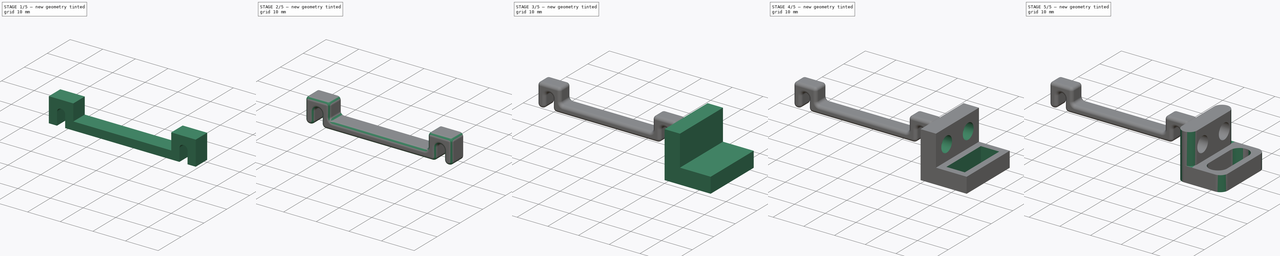
[diagram: build sequence overview — one tinted view per stage of 5, left to right]
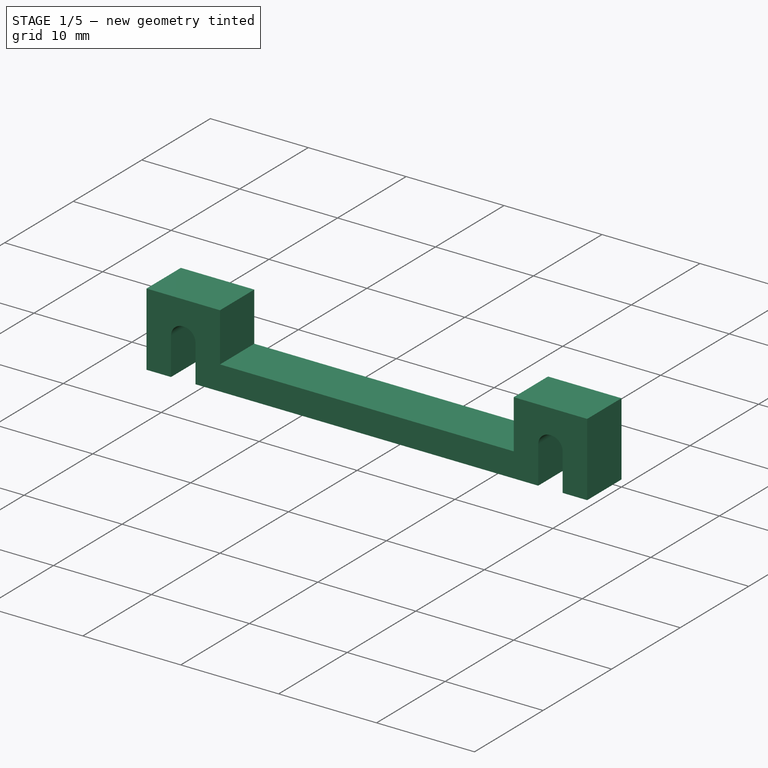
[diagram: stage 1 of 5 — iso view after this stage's code; geometry added in this stage tinted green]
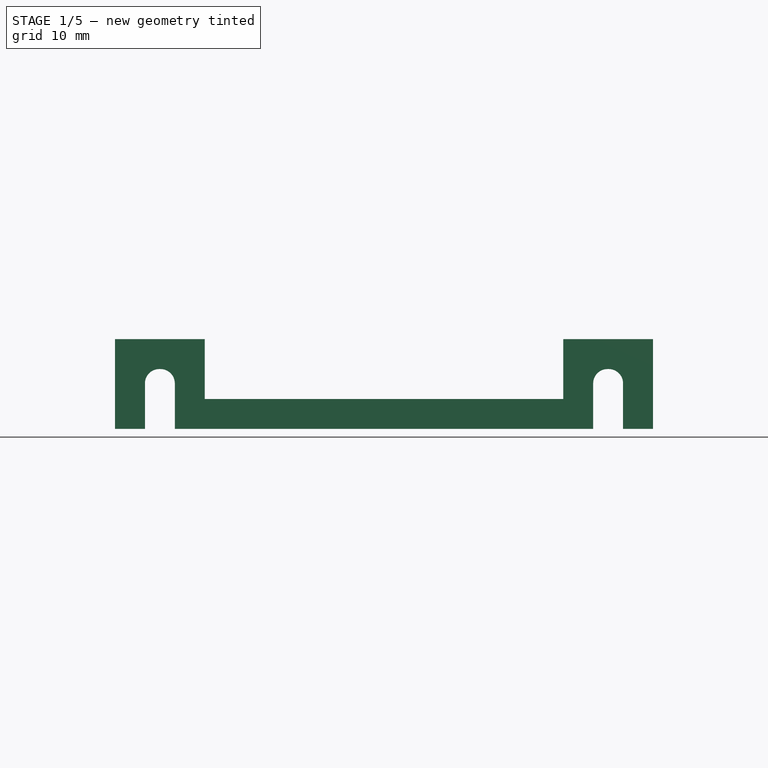
[diagram: stage 1 of 5 — front view after this stage's code; geometry added in this stage tinted green]
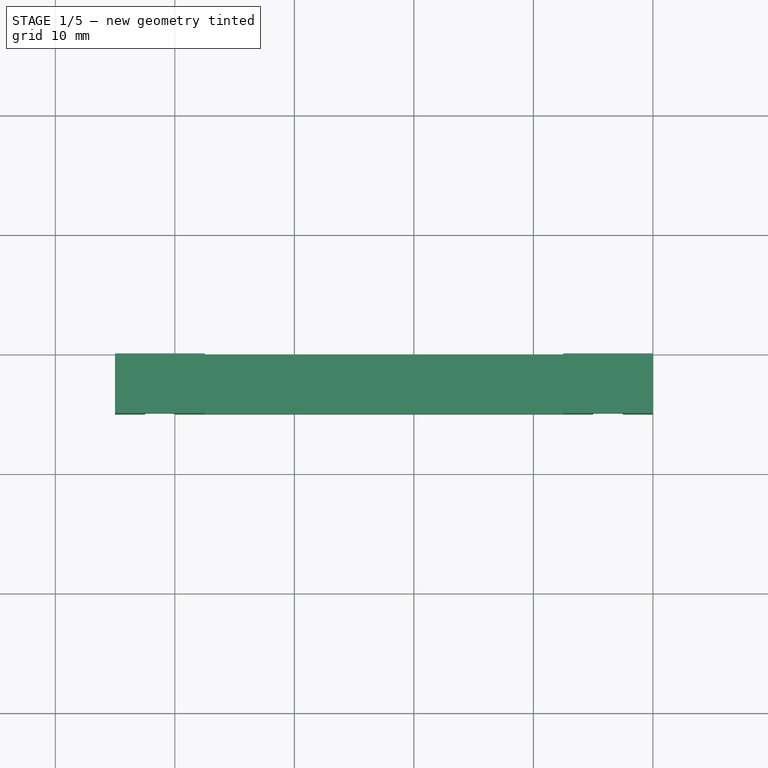
[diagram: stage 1 of 5 — top view after this stage's code; geometry added in this stage tinted green]
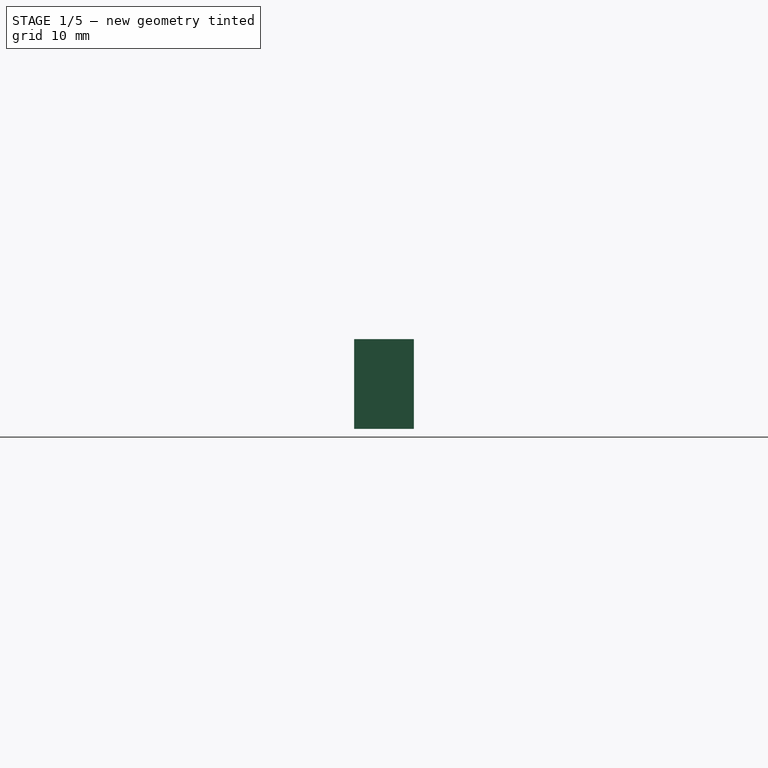
[diagram: stage 1 of 5 — right view after this stage's code; geometry added in this stage tinted green]
FCSTD DOCUMENT  (FreeCAD 1.0R39109 (Git))
Label: cabin_hook
License: All rights reserved
LicenseURL: https://en.wikipedia.org/wiki/All_rights_reserved
objects: PartDesign::Fillet×8, Sketcher::SketchObject×6, PartDesign::Pad×3, PartDesign::Pocket×3, PartDesign::Body×2, PartDesign::Chamfer×1
note: 59 computed .brp shape members not serialized (recipe doc carries the construction recipe); baked Part::Feature solids carry a one-line shape summary decoded from their .brp

FEATURE [PartDesign::Body] Body
  AllowCompound = false
  Group = -> [Sketch,Pad,Sketch001,Pad001,Sketch002,Pocket,Sketch003,Pocket001,Sketch005,Pocket002,Fillet,Fillet001,Chamfer]
  Origin = -> Origin
  Tip = -> Chamfer
FEATURE [Sketcher::SketchObject] Sketch006
  ArcFitTolerance = 1e-06
  AttachmentSupport = -> [XZ_Plane001]
  FullyConstrained = true
  MakeInternals = false
  MapMode = 5
  Placement = pos=(0,0,0) rot=(1,0,0;1.5708rad)
  sketch-geometry (18):
    g0: LineSegment StartX=0 StartY=0 StartZ=0 EndX=0 EndY=7.5 EndZ=0
    g1: LineSegment StartX=0 StartY=7.5 StartZ=0 EndX=-7.5 EndY=7.5 EndZ=0
    g2: LineSegment StartX=-7.5 StartY=7.5 StartZ=0 EndX=-7.5 EndY=2.5 EndZ=0
    g3: LineSegment StartX=-7.5 StartY=2.5 StartZ=0 EndX=-37.5 EndY=2.5 EndZ=0
    g4: LineSegment StartX=-37.5 StartY=2.5 StartZ=0 EndX=-37.5 EndY=7.5 EndZ=0
    g5: LineSegment StartX=-37.5 StartY=7.5 StartZ=0 EndX=-45 EndY=7.5 EndZ=0
    g6: LineSegment StartX=-45 StartY=7.5 StartZ=0 EndX=-45 EndY=0 EndZ=0
    g7: LineSegment StartX=-45 StartY=0 StartZ=0 EndX=-42.5 EndY=0 EndZ=0
    g8: LineSegment StartX=-42.5 StartY=0 StartZ=0 EndX=-42.5 EndY=5 EndZ=0
    g9: LineSegment StartX=-42.5 StartY=5 StartZ=0 EndX=-40 EndY=5 EndZ=0
    g10: LineSegment StartX=-40 StartY=5 StartZ=0 EndX=-40 EndY=0 EndZ=0
    g11: LineSegment StartX=-40 StartY=0 StartZ=0 EndX=-23.02 EndY=0 EndZ=0
    g12: LineSegment StartX=-23.02 StartY=0 StartZ=0 EndX=-11.49 EndY=0 EndZ=0
    g13: LineSegment StartX=-11.49 StartY=0 StartZ=0 EndX=-5 EndY=0 EndZ=0
    g14: LineSegment StartX=-5 StartY=0 StartZ=0 EndX=-5 EndY=5 EndZ=0
    g15: LineSegment StartX=-5 StartY=5 StartZ=0 EndX=-2.5 EndY=5 EndZ=0
    g16: LineSegment StartX=-2.5 StartY=5 StartZ=0 EndX=-2.5 EndY=0 EndZ=0
    g17: LineSegment StartX=-2.5 StartY=0 StartZ=0 EndX=0 EndY=0 EndZ=0
  constraints (53):
    c: Vertical(g0)
    c: Coincident(g0,g1)
    c: Horizontal(g1)
    c: Coincident(g1,g2)
    c: Coincident(g2,g3)
    c: Horizontal(g3)
    c: Coincident(g3,g4)
    c: Coincident(g4,g5)
    c: Horizontal(g5)
    c: Coincident(g5,g6)
    c: PointOnObject(g6,g-1)
    c: Vertical(g6)
    c: Coincident(g6,g7)
    c: PointOnObject(g7,g-1)
    c: Coincident(g7,g8)
    c: Vertical(g8)
    c: Coincident(g8,g9)
    c: Coincident(g9,g10)
    c: PointOnObject(g10,g-1)
    c: Vertical(g10)
    c: Coincident(g10,g11)
    c: PointOnObject(g11,g-1)
    c: Coincident(g11,g12)
    c: PointOnObject(g12,g-1)
    c: Coincident(g12,g13)
    c: PointOnObject(g13,g-1)
    c: Coincident(g13,g14)
    c: Coincident(g14,g15)
    c: Horizontal(g15)
    c: Coincident(g15,g16)
    c: PointOnObject(g16,g-1)
    c: Vertical(g16)
    c: Coincident(g16,g17)
    c: Coincident(g17,g0)
    c: Distance(g8,g6) = 2.5
    c: Distance(g3,g10) = 2.5
    c: Distance(g12,g3) = 2.5
    c: Distance(g8,g10) = 2.5
    c: Perpendicular(g11,g4)
    c: Distance(g0,g16) = 2.5
    c: Distance(g14,g2) = 2.5
    c: Perpendicular(g13,g2)
    c: DistanceX(g14,g15) = 2.5
    c: Parallel(g9,g5)
    c: Parallel(g14,g16)
    c: Distance(g2,g4) = 30
    c: Coincident(g0,g-1)
    c: DistanceX(g11,g12) = 11.53
    c: DistanceX(g12,g13) = 6.49
    c: Distance(g-1,g9) = 5
    c: Distance(g5,g9) = 2.5
    c: Distance(g15,g-1) = 5
    c: Distance(g15,g1) = 2.5
FEATURE [PartDesign::Pad] Pad002
  Direction = (0,-1,2e-16)
  Length = 5
  Length2 = 10
  Placement = pos=(0,0,0) rot=(1,0,0;1.5708rad)
  Profile = -> Sketch006
  ReferenceAxis = -> Sketch006 [N_Axis]
  Refine = true
  Suppressed = false
  Type = 0
FEATURE [PartDesign::Fillet] Fillet002
  Base = -> Pad002 [Edge41,Edge38]
  BaseFeature = -> Pad002
  Placement = pos=(0,0,0) rot=(1,0,0;1.5708rad)
  Radius = 1.2
  Refine = true
  SupportTransform = false
  Suppressed = false
  UseAllEdges = false
FEATURE [PartDesign::Fillet] Fillet003
  Base = -> Fillet002 [Edge49,Edge51]
  BaseFeature = -> Fillet002
  Placement = pos=(0,0,0) rot=(1,0,0;1.5708rad)
  Radius = 1.2
  Refine = true
  SupportTransform = false
  Suppressed = false
  UseAllEdges = false
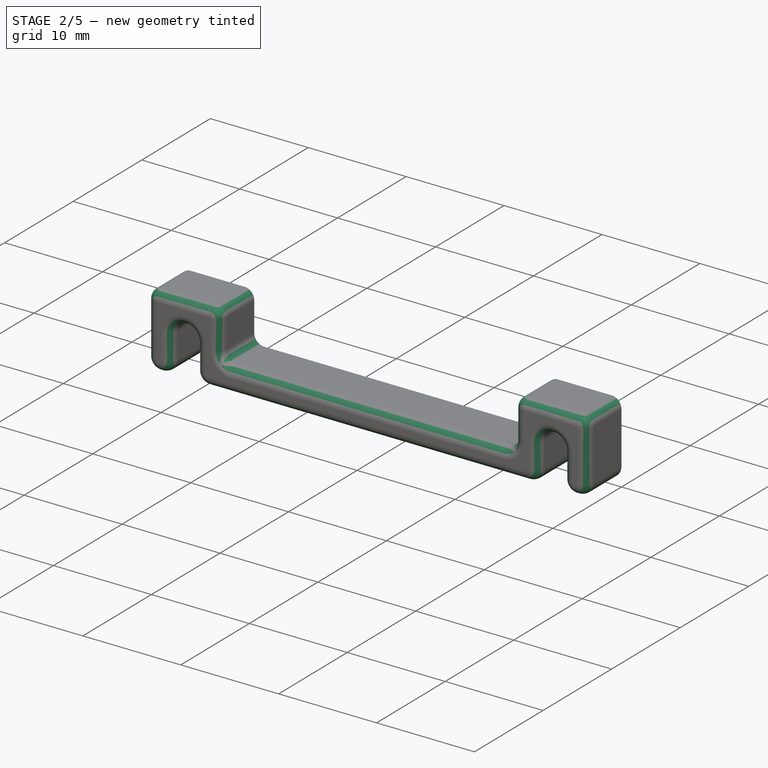
[diagram: stage 2 of 5 — iso view after this stage's code; geometry added in this stage tinted green]
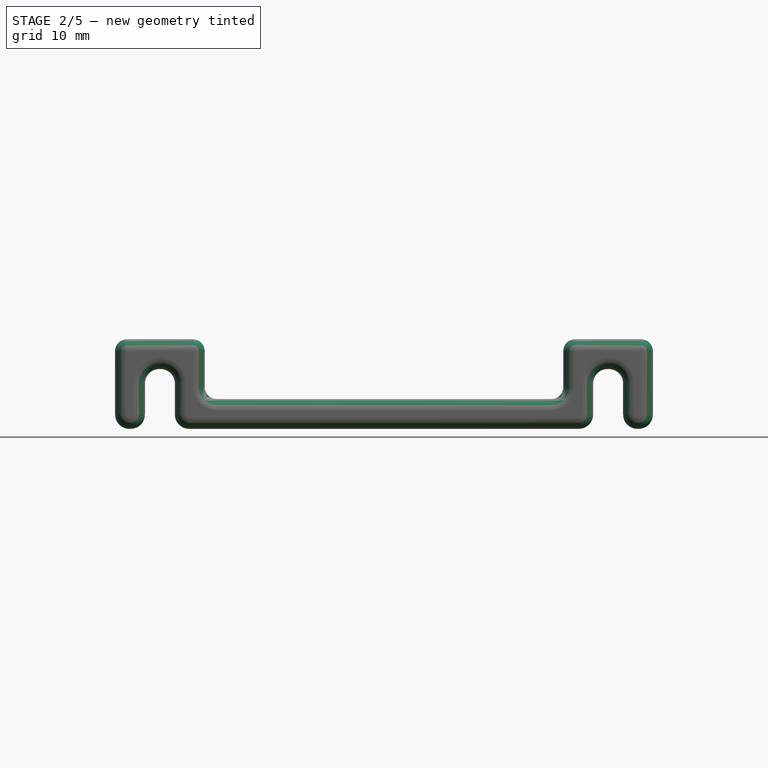
[diagram: stage 2 of 5 — front view after this stage's code; geometry added in this stage tinted green]
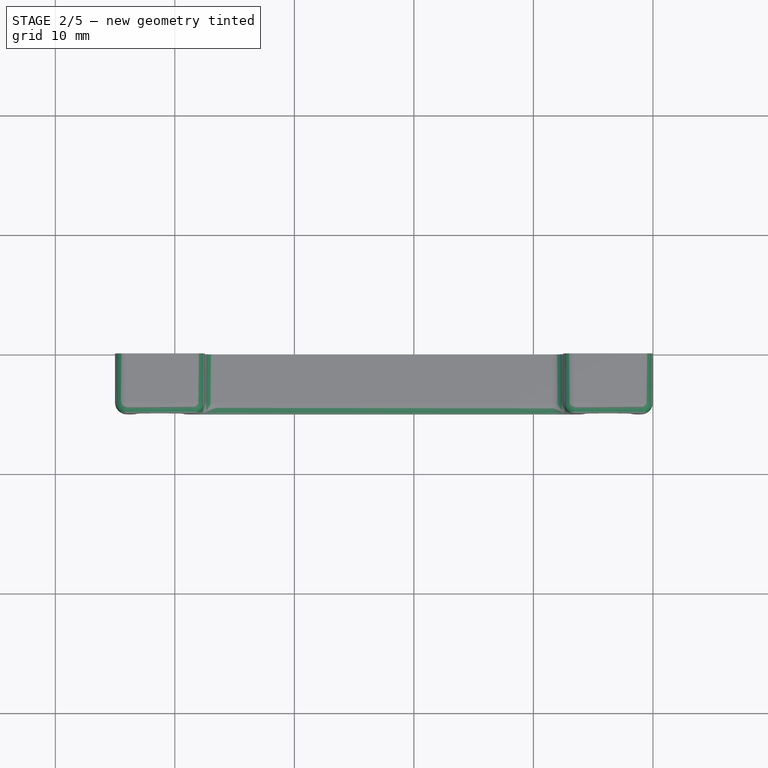
[diagram: stage 2 of 5 — top view after this stage's code; geometry added in this stage tinted green]
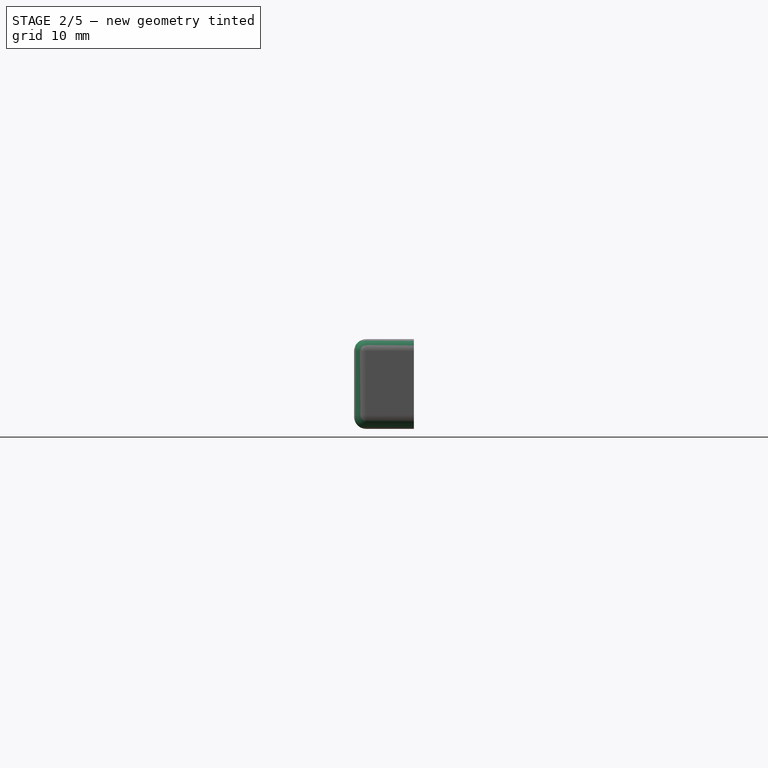
[diagram: stage 2 of 5 — right view after this stage's code; geometry added in this stage tinted green]
FEATURE [PartDesign::Fillet] Fillet004
  Base = -> Fillet003 [Edge50,Edge46,Edge26,Edge22,Edge36,Edge40]
  BaseFeature = -> Fillet003
  Placement = pos=(0,0,0) rot=(1,0,0;1.5708rad)
  Radius = 1.2
  Refine = true
  SupportTransform = false
  Suppressed = false
  UseAllEdges = false
FEATURE [PartDesign::Fillet] Fillet005
  Base = -> Fillet004 [Edge74,Edge76,Edge72,Edge68,Edge64,Edge60]
  BaseFeature = -> Fillet004
  Placement = pos=(0,0,0) rot=(1,0,0;1.5708rad)
  Radius = 1
  Refine = true
  SupportTransform = false
  Suppressed = false
  UseAllEdges = false
FEATURE [PartDesign::Fillet] Fillet006
  Base = -> Fillet005 [Edge81]
  BaseFeature = -> Fillet005
  Placement = pos=(0,0,0) rot=(1,0,0;1.5708rad)
  Radius = 1
  Refine = true
  SupportTransform = false
  Suppressed = false
  UseAllEdges = false
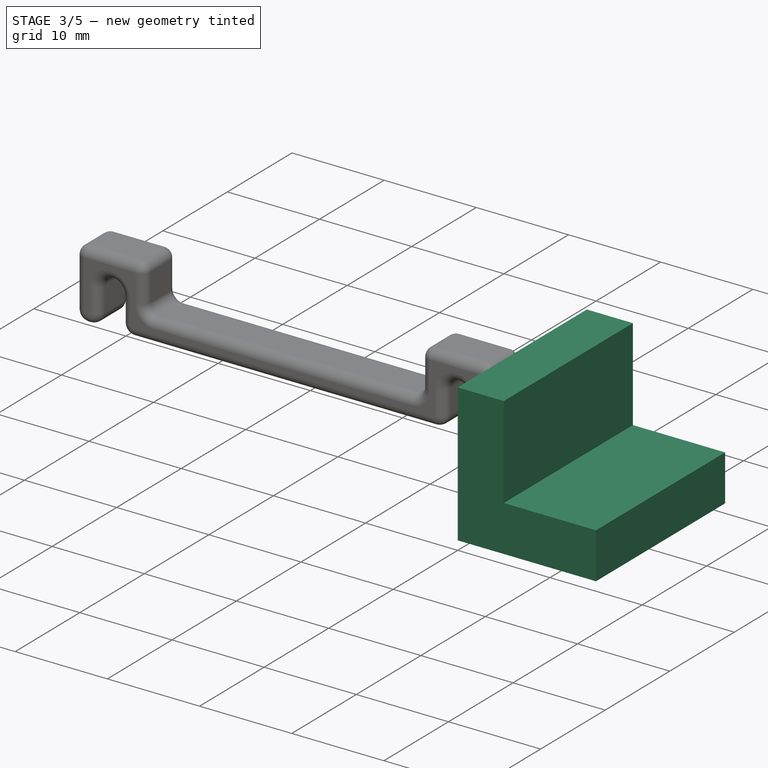
[diagram: stage 3 of 5 — iso view after this stage's code; geometry added in this stage tinted green]
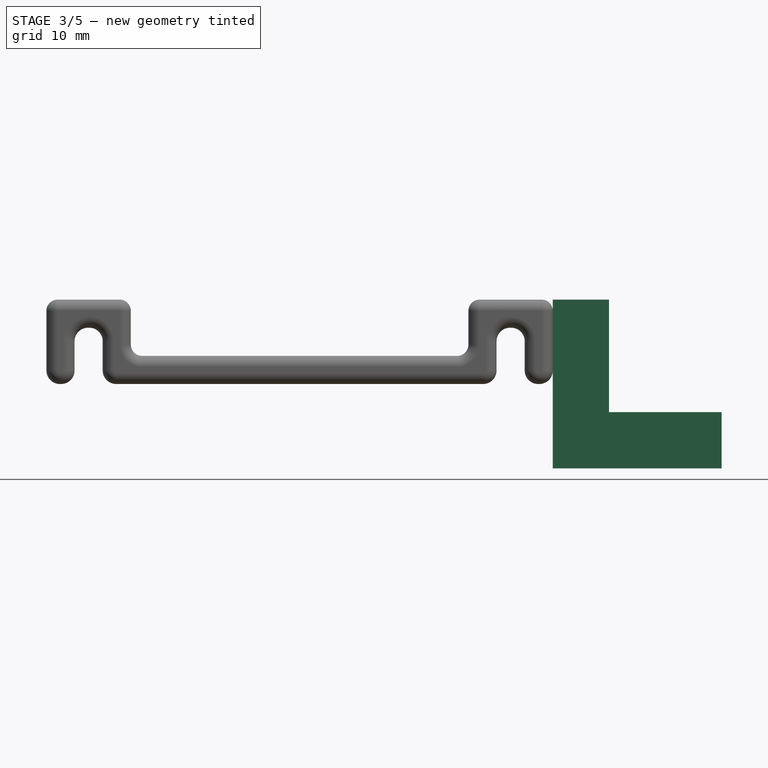
[diagram: stage 3 of 5 — front view after this stage's code; geometry added in this stage tinted green]
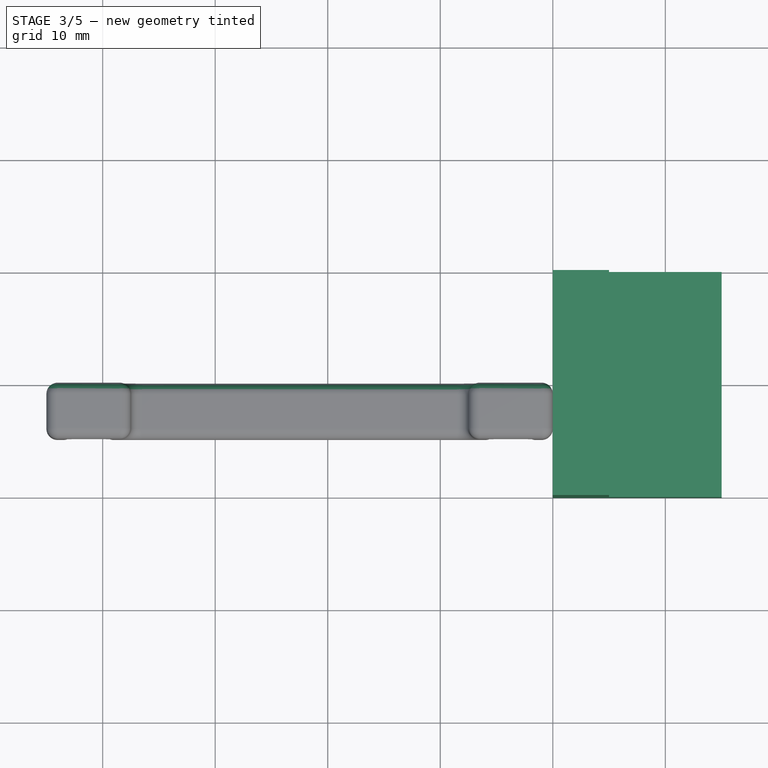
[diagram: stage 3 of 5 — top view after this stage's code; geometry added in this stage tinted green]
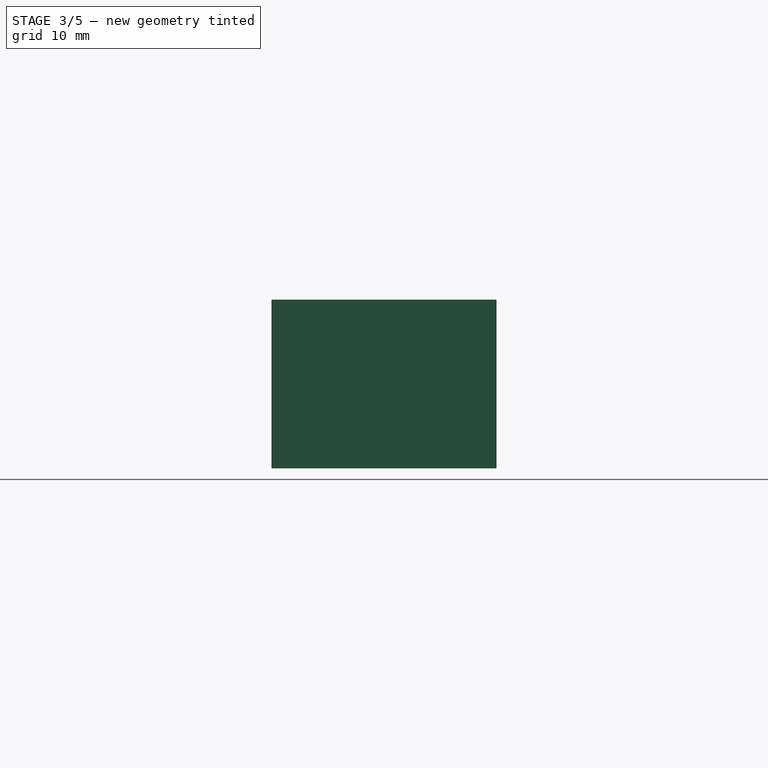
[diagram: stage 3 of 5 — right view after this stage's code; geometry added in this stage tinted green]
FEATURE [Sketcher::SketchObject] Sketch
  ArcFitTolerance = 1e-06
  AttachmentSupport = -> [YZ_Plane]
  FullyConstrained = true
  MakeInternals = false
  MapMode = 5
  Placement = pos=(0,0,0) rot=(0.57735,0.57735,0.57735;2.0944rad)
  sketch-geometry (5):
    g0: LineSegment StartX=-10 StartY=-7.5 StartZ=0 EndX=10 EndY=-7.5 EndZ=0
    g1: LineSegment StartX=10 StartY=-7.5 StartZ=0 EndX=10 EndY=7.5 EndZ=0
    g2: LineSegment StartX=10 StartY=7.5 StartZ=0 EndX=-10 EndY=7.5 EndZ=0
    g3: LineSegment StartX=-10 StartY=7.5 StartZ=0 EndX=-10 EndY=-7.5 EndZ=0
    g4: GeomPoint [constr] X=0 Y=0 Z=0
  constraints (12):
    c: Coincident(g0,g1)
    c: Coincident(g1,g2)
    c: Coincident(g2,g3)
    c: Coincident(g3,g0)
    c: Horizontal(g0)
    c: Horizontal(g2)
    c: Vertical(g1)
    c: Vertical(g3)
    c: Symmetric(g2,g0,g4)
    c: Distance(g1,g3) = 20
    c: Distance(g0,g2) = 15
    c: Coincident(g4,g-1)
FEATURE [PartDesign::Pad] Pad
  Direction = (1,0,0)
  Length = 5
  Length2 = 10
  Placement = pos=(0,0,0) rot=(1,1,1;2.0944rad)
  Profile = -> Sketch
  ReferenceAxis = -> Sketch [N_Axis]
  Refine = true
  Suppressed = false
  Type = 0
FEATURE [Sketcher::SketchObject] Sketch001
  ArcFitTolerance = 1e-06
  AttachmentSupport = -> [Pad]
  ExternalGeometry = -> [Pad]
  FullyConstrained = true
  MakeInternals = false
  MapMode = 5
  Placement = pos=(5,-1.1e-15,6e-16) rot=(0.57735,0.57735,0.57735;2.0944rad)
  sketch-geometry (4):
    g0: LineSegment StartX=-10 StartY=-7.5 StartZ=0 EndX=10 EndY=-7.5 EndZ=0
    g1: LineSegment StartX=10 StartY=-7.5 StartZ=0 EndX=10 EndY=-2.5 EndZ=0
    g2: LineSegment StartX=10 StartY=-2.5 StartZ=0 EndX=-10 EndY=-2.5 EndZ=0
    g3: LineSegment StartX=-10 StartY=-2.5 StartZ=0 EndX=-10 EndY=-7.5 EndZ=0
  constraints (11):
    c: Coincident(g0,g1)
    c: Coincident(g1,g2)
    c: Coincident(g2,g3)
    c: Coincident(g3,g0)
    c: Horizontal(g0)
    c: Horizontal(g2)
    c: Vertical(g1)
    c: Vertical(g3)
    c: Distance(g0,g2) = 5
    c: Coincident(g0,g-4)
    c: PointOnObject(g1,g-5)
FEATURE [PartDesign::Pad] Pad001
  BaseFeature = -> Pad
  Direction = (1,0,0)
  Length = 10
  Length2 = 10
  Placement = pos=(0,0,0) rot=(1,1,1;2.0944rad)
  Profile = -> Sketch001
  ReferenceAxis = -> Sketch001 [N_Axis]
  Refine = true
  Suppressed = false
  Type = 0
FEATURE [PartDesign::Fillet] Fillet007
  Base = -> Fillet006 [Edge32]
  BaseFeature = -> Fillet006
  Placement = pos=(0,0,0) rot=(1,0,0;1.5708rad)
  Radius = 1
  Refine = true
  SupportTransform = false
  Suppressed = false
  UseAllEdges = false
FEATURE [PartDesign::Body] Body001
  AllowCompound = false
  Group = -> [Sketch006,Pad002,Fillet002,Fillet003,Fillet004,Fillet005,Fillet006,Fillet007]
  Origin = -> Origin001
  Tip = -> Fillet007
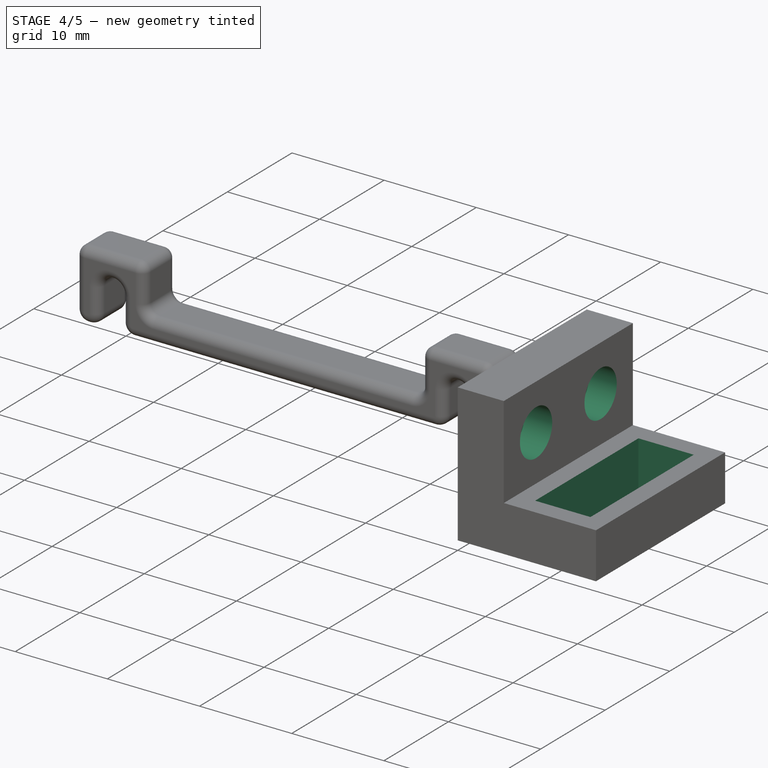
[diagram: stage 4 of 5 — iso view after this stage's code; geometry added in this stage tinted green]
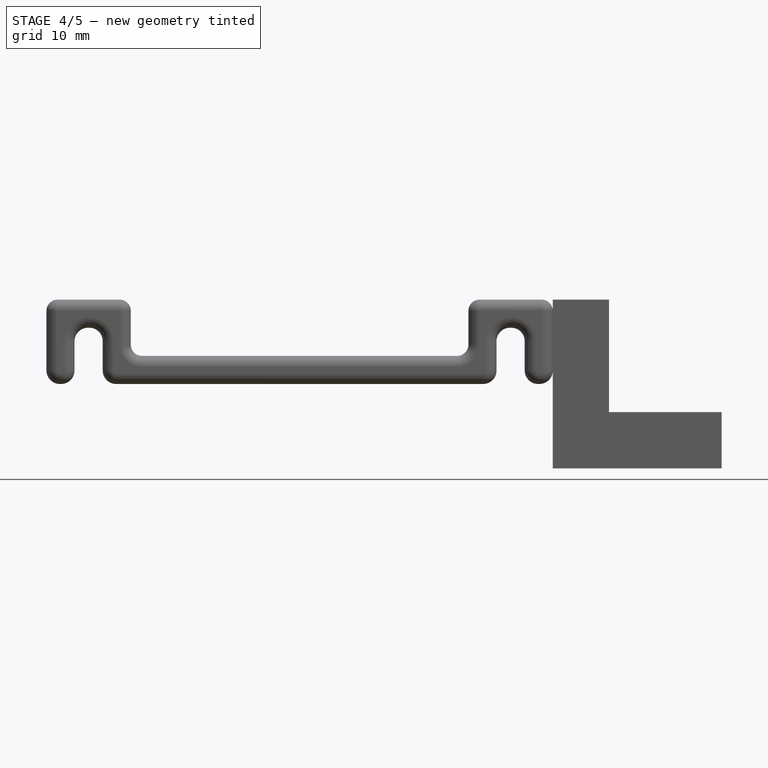
[diagram: stage 4 of 5 — front view after this stage's code; geometry added in this stage tinted green]
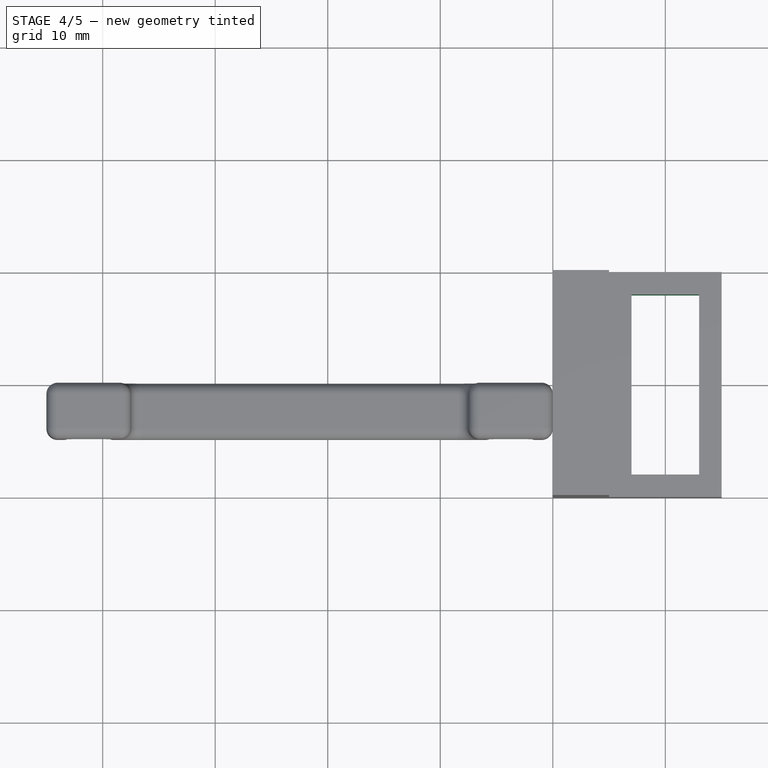
[diagram: stage 4 of 5 — top view after this stage's code; geometry added in this stage tinted green]
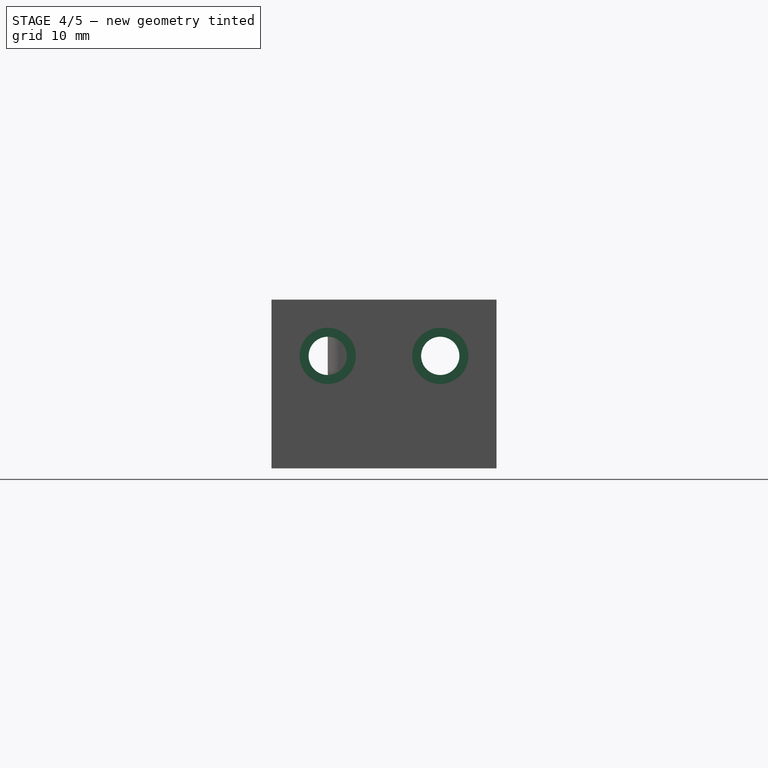
[diagram: stage 4 of 5 — right view after this stage's code; geometry added in this stage tinted green]
FEATURE [Sketcher::SketchObject] Sketch002
  ArcFitTolerance = 1e-06
  AttachmentSupport = -> [Pad001]
  ExternalGeometry = -> [Pad001]
  FullyConstrained = true
  MakeInternals = false
  MapMode = 5
  Placement = pos=(3e-16,-8e-16,-2.5) rot=(0,0,-1;1.5708rad)
  sketch-geometry (4):
    g0: LineSegment StartX=-8 StartY=13 StartZ=0 EndX=-8 EndY=7 EndZ=0
    g1: LineSegment StartX=-8 StartY=7 StartZ=0 EndX=8 EndY=7 EndZ=0
    g2: LineSegment StartX=8 StartY=7 StartZ=0 EndX=8 EndY=13 EndZ=0
    g3: LineSegment StartX=8 StartY=13 StartZ=0 EndX=-8 EndY=13 EndZ=0
  constraints (12):
    c: Coincident(g0,g1)
    c: Coincident(g1,g2)
    c: Coincident(g2,g3)
    c: Coincident(g3,g0)
    c: Vertical(g0)
    c: Vertical(g2)
    c: Horizontal(g1)
    c: Horizontal(g3)
    c: Distance(g-4,g0) = 2
    c: Distance(g-5,g2) = 2
    c: Distance(g-3,g3) = 2
    c: Distance(g-6,g1) = 2
FEATURE [PartDesign::Pocket] Pocket
  BaseFeature = -> Pad001
  Direction = (0,0,-1)
  Length = 5
  Length2 = 5
  Placement = pos=(0,0,0) rot=(1,1,1;2.0944rad)
  Profile = -> Sketch002
  ReferenceAxis = -> Sketch002 [N_Axis]
  Refine = true
  Suppressed = false
  Type = 0
FEATURE [Sketcher::SketchObject] Sketch003
  ArcFitTolerance = 1e-06
  AttachmentSupport = -> [Pocket]
  FullyConstrained = true
  MakeInternals = false
  MapMode = 5
  Placement = pos=(5,-3.3e-15,1.7e-15) rot=(0.57735,0.57735,0.57735;2.0944rad)
  sketch-geometry (2):
    g0: Circle CenterX=-5 CenterY=2.5 CenterZ=0 NormalX=0 NormalY=0 NormalZ=1 AngleXU=0 Radius=1.7
    g1: Circle CenterX=5 CenterY=2.5 CenterZ=0 NormalX=0 NormalY=0 NormalZ=1 AngleXU=0 Radius=1.7
  constraints (6):
    c: Diameter(g0) = 3.4
    c: Diameter(g1) = 3.4
    c: Distance(g0,g-1) = 2.5
    c: Distance(g0,g-2) = 5
    c: Distance(g1,g-2) = 5
    c: Distance(g1,g-1) = 2.5
FEATURE [PartDesign::Pocket] Pocket001
  BaseFeature = -> Pocket
  Direction = (-1,0,0)
  Length = 5
  Length2 = 5
  Placement = pos=(0,0,0) rot=(1,1,1;2.0944rad)
  Profile = -> Sketch003
  ReferenceAxis = -> Sketch003 [N_Axis]
  Refine = true
  Suppressed = false
  Type = 0
FEATURE [Sketcher::SketchObject] Sketch005
  ArcFitTolerance = 1e-06
  AttachmentSupport = -> [Pocket001]
  ExternalGeometry = -> [Pocket001]
  FullyConstrained = true
  MakeInternals = false
  MapMode = 5
  Placement = pos=(5,-4.4e-15,2.2e-15) rot=(0.57735,0.57735,0.57735;2.0944rad)
  sketch-geometry (2):
    g0: Circle CenterX=-5 CenterY=2.5 CenterZ=0 NormalX=0 NormalY=0 NormalZ=1 AngleXU=0 Radius=2.5
    g1: Circle CenterX=5 CenterY=2.5 CenterZ=0 NormalX=0 NormalY=0 NormalZ=1 AngleXU=0 Radius=2.5
  constraints (4):
    c: Coincident(g0,g-3)
    c: Tangent(g0,g-1)
    c: Coincident(g1,g-4)
    c: Tangent(g1,g-1)
FEATURE [PartDesign::Pocket] Pocket002
  BaseFeature = -> Pocket001
  Direction = (-1,0,0)
  Length = 3
  Length2 = 5
  Placement = pos=(0,0,0) rot=(1,1,1;2.0944rad)
  Profile = -> Sketch005
  ReferenceAxis = -> Sketch005 [N_Axis]
  Refine = true
  Suppressed = false
  Type = 0
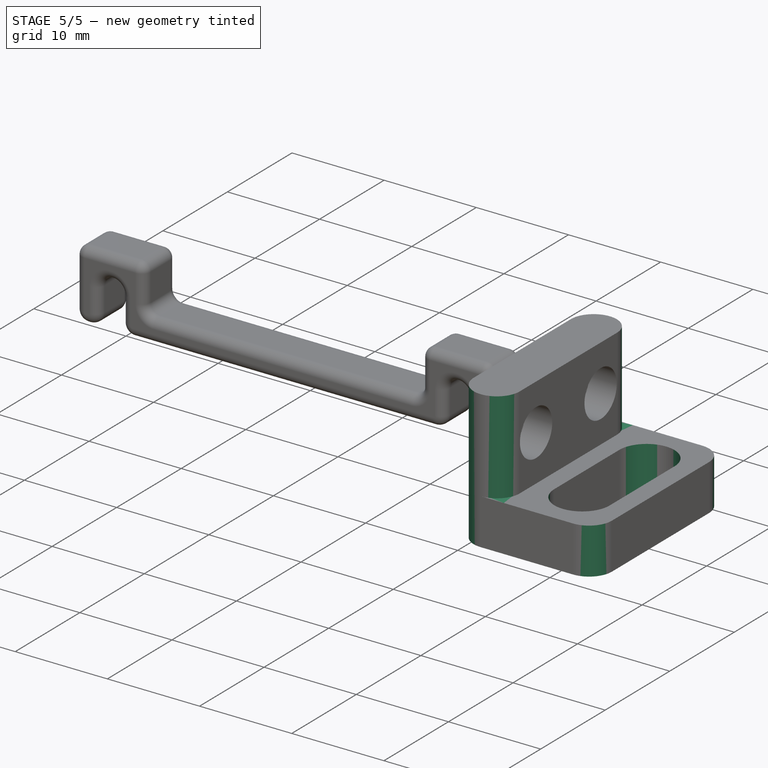
[diagram: stage 5 of 5 — iso view after this stage's code; geometry added in this stage tinted green]
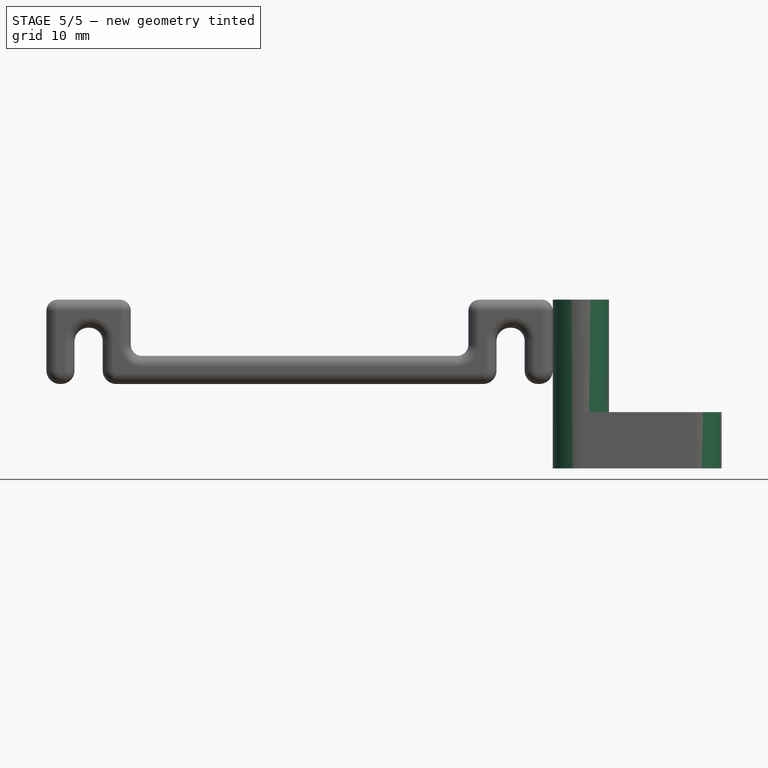
[diagram: stage 5 of 5 — front view after this stage's code; geometry added in this stage tinted green]
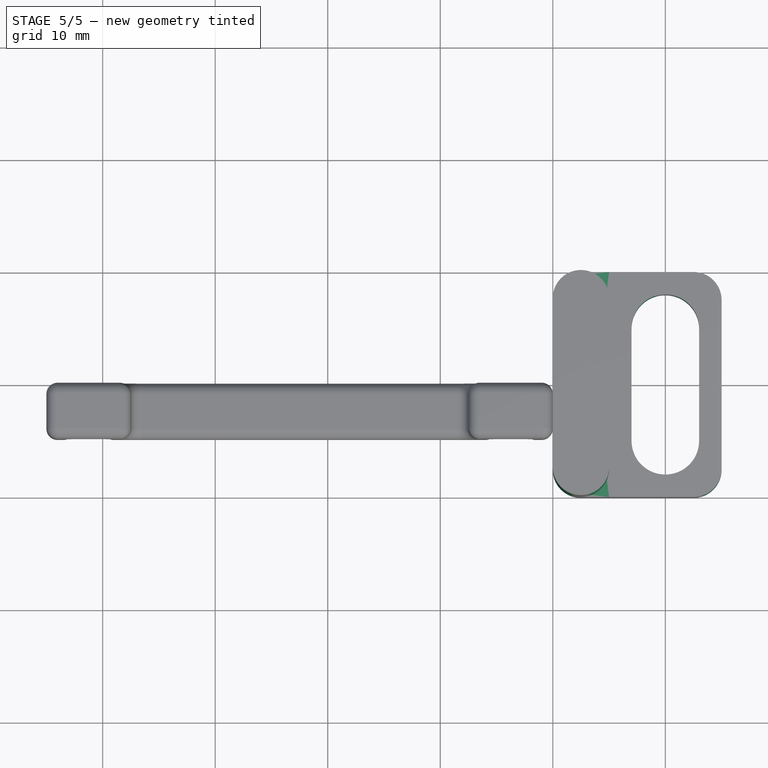
[diagram: stage 5 of 5 — top view after this stage's code; geometry added in this stage tinted green]
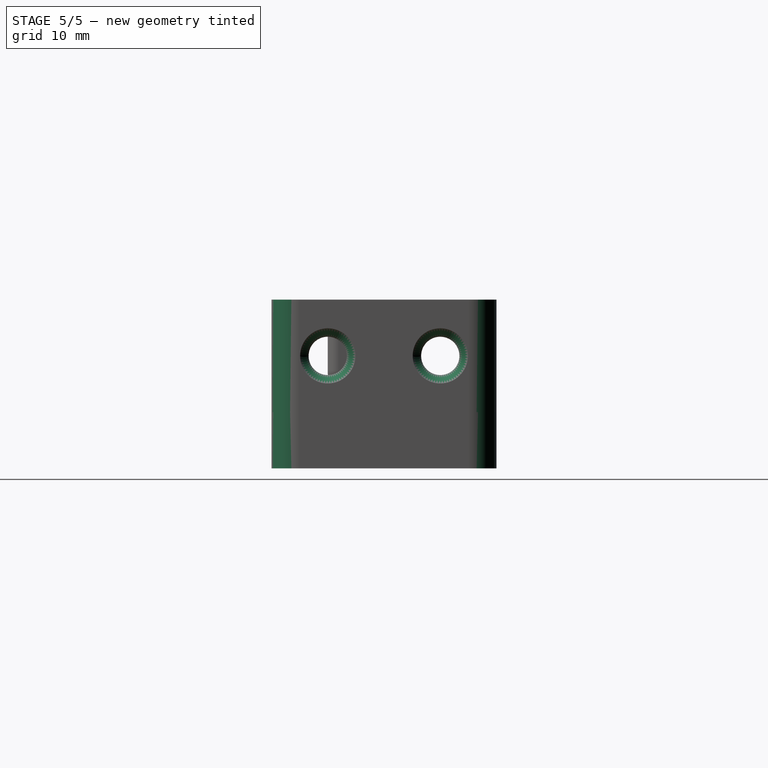
[diagram: stage 5 of 5 — right view after this stage's code; geometry added in this stage tinted green]
FEATURE [PartDesign::Fillet] Fillet
  Base = -> Pocket002 [Edge33,Edge29,Edge31,Edge28]
  BaseFeature = -> Pocket002
  Placement = pos=(0,0,0) rot=(1,1,1;2.0944rad)
  Radius = 2.99
  Refine = true
  SupportTransform = false
  Suppressed = false
  UseAllEdges = false
FEATURE [PartDesign::Fillet] Fillet001
  Base = -> Fillet [Edge41,Edge35,Edge29,Edge37,Edge39,Edge30]
  BaseFeature = -> Fillet
  Placement = pos=(0,0,0) rot=(1,1,1;2.0944rad)
  Radius = 2.49
  Refine = true
  SupportTransform = false
  Suppressed = false
  UseAllEdges = false
FEATURE [PartDesign::Chamfer] Chamfer
  Angle = 45
  Base = -> Fillet001 [Edge60,Edge62]
  BaseFeature = -> Fillet001
  ChamferType = 0
  FlipDirection = false
  Placement = pos=(0,0,0) rot=(1,1,1;2.0944rad)
  Refine = true
  Size = 0.75
  Size2 = 1
  SupportTransform = false
  Suppressed = false
  UseAllEdges = false
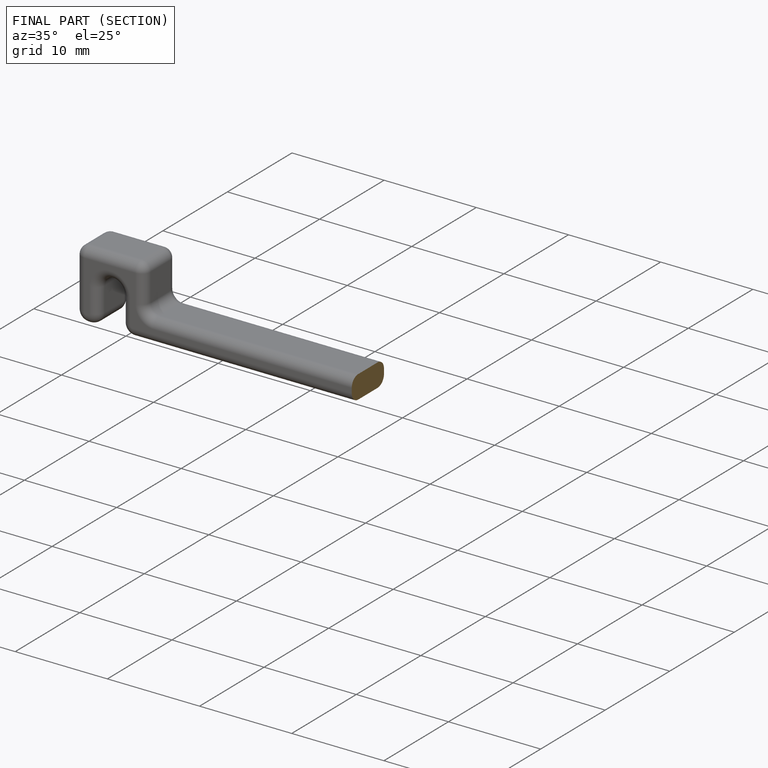
[diagram: finished part — half-section view (interior)]
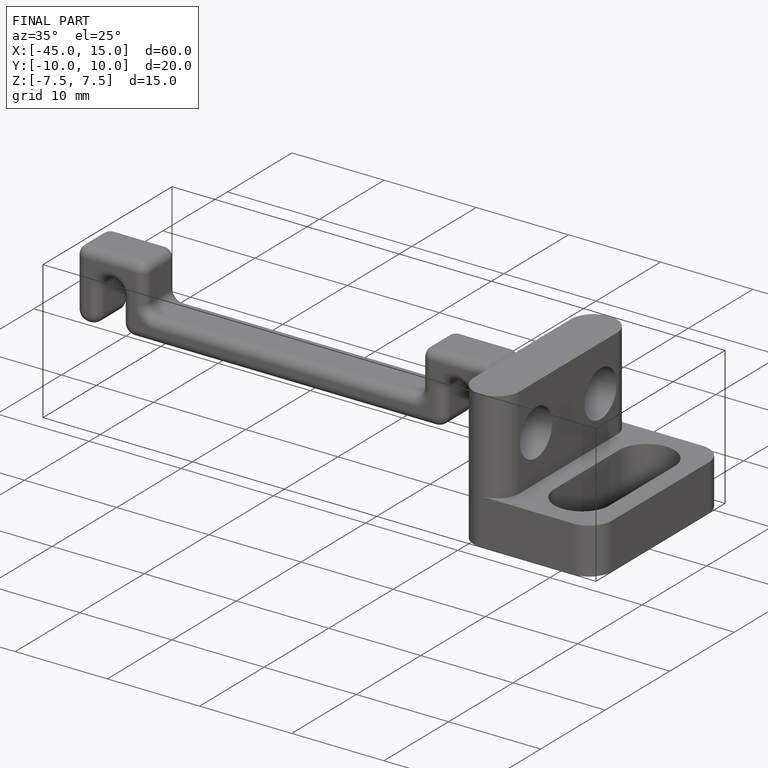
[diagram: finished part — iso view with bounding-box wireframe]
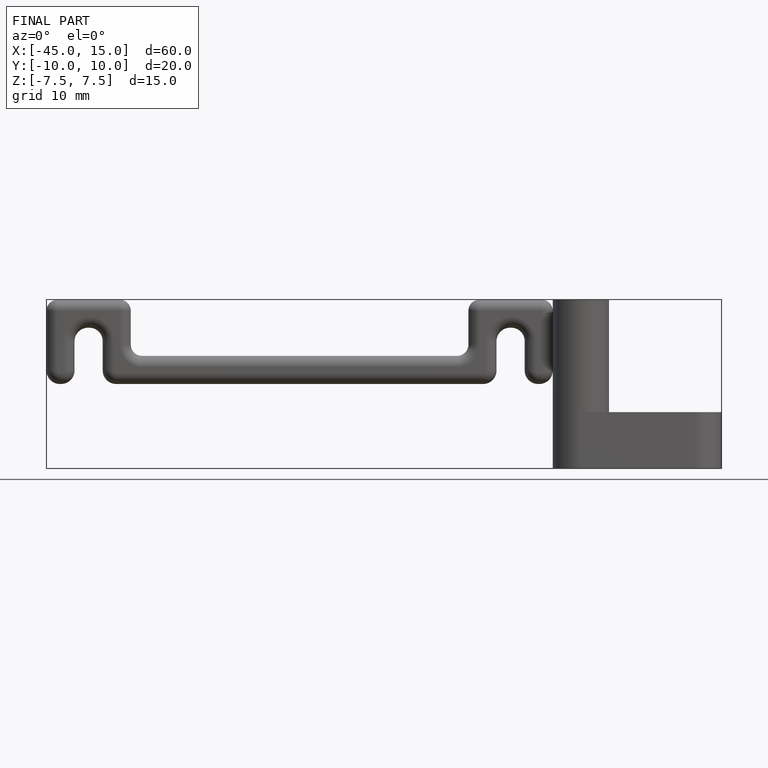
[diagram: finished part — front view with bounding-box wireframe]
